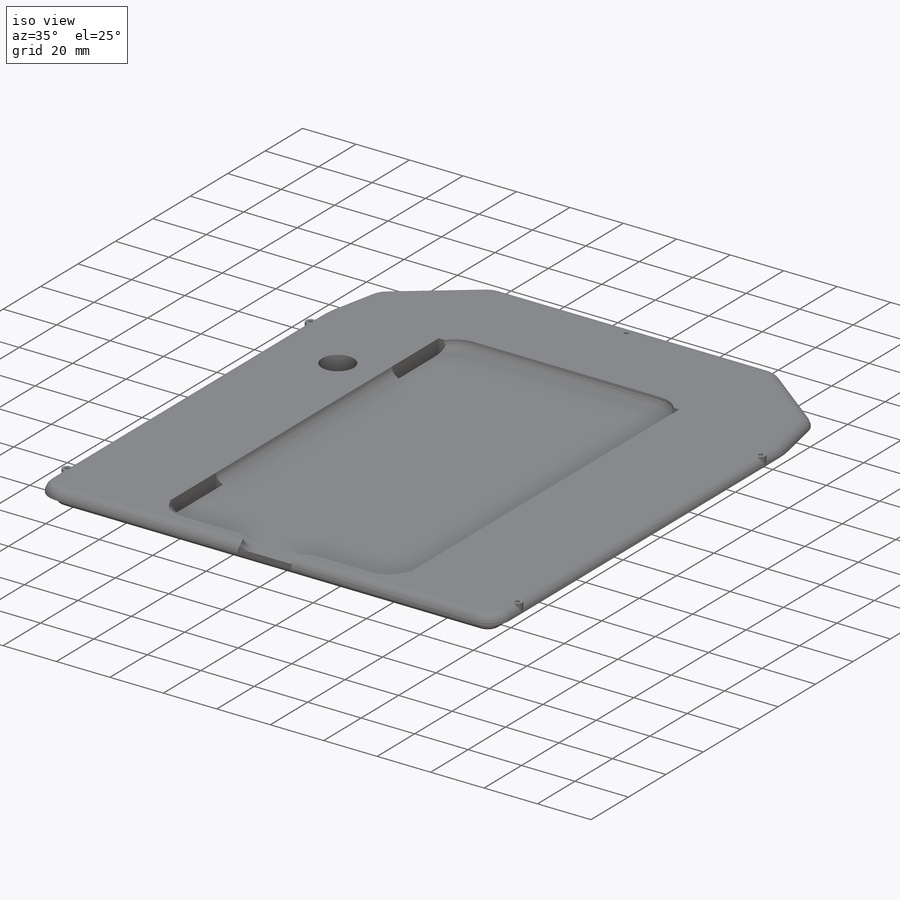
[diagram: iso view]
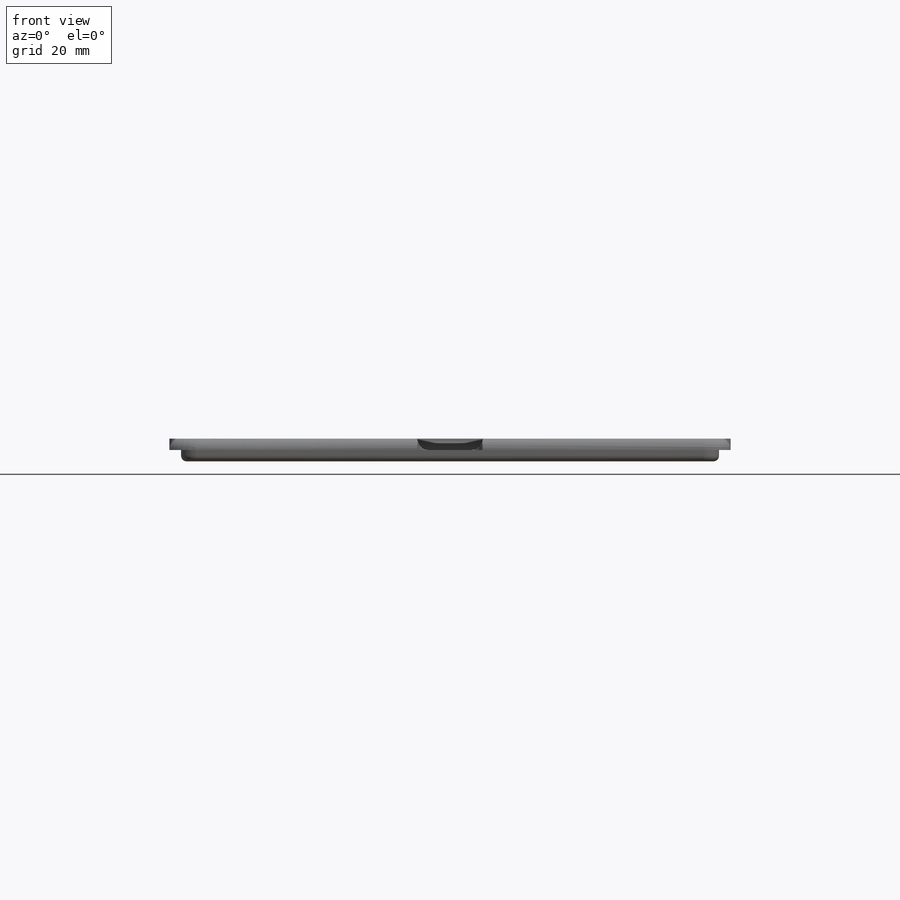
[diagram: front view]
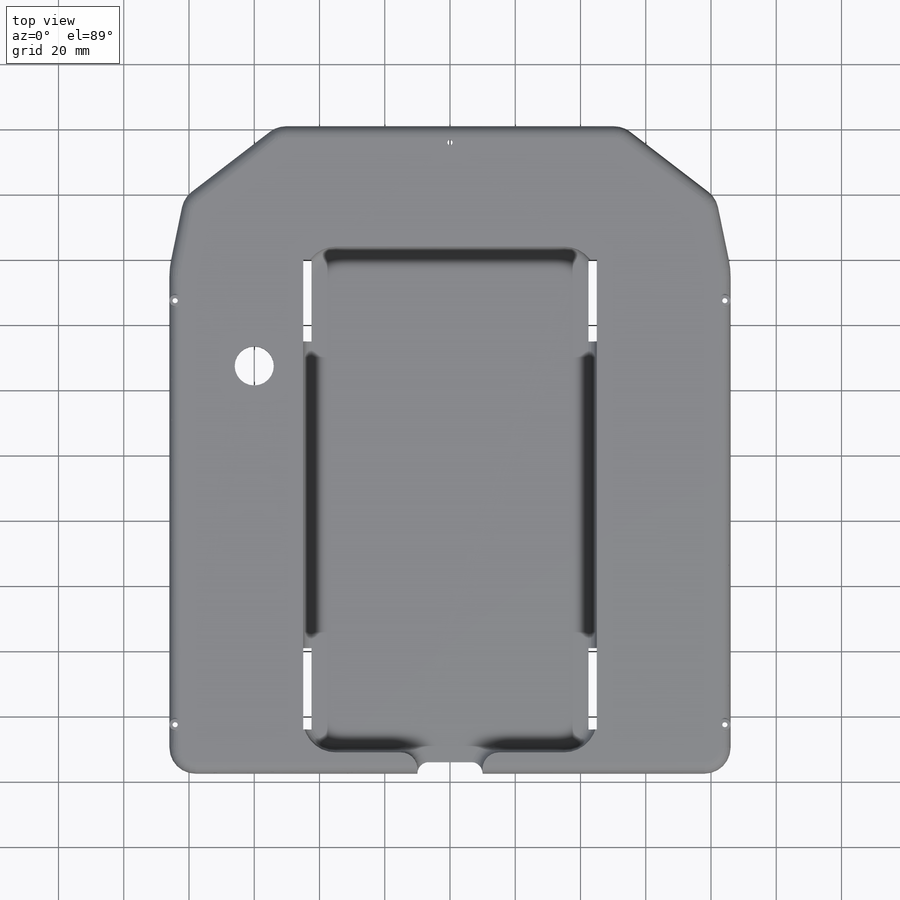
[diagram: top view]
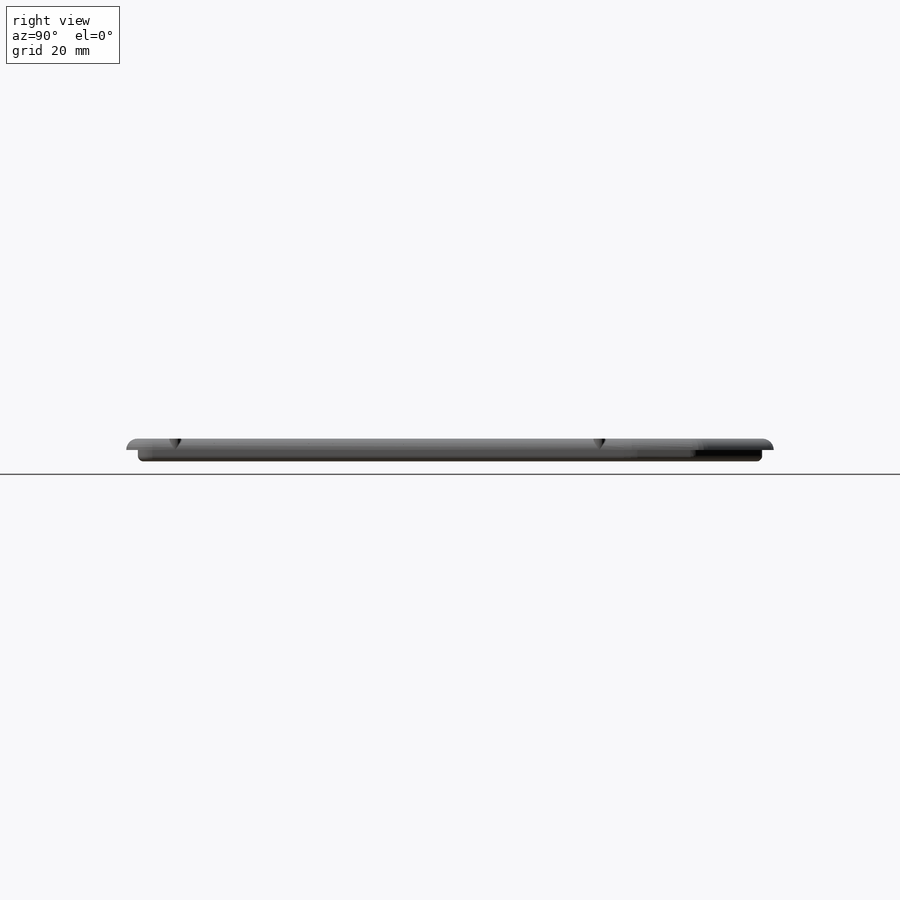
[diagram: right view]
SOLIDWORKS PART (.sldprt)
format: sldprt  version: not decoded by parser v0  size: 825,856 bytes
history: native  units: mm
features: fillet x12, sketch x8, cut_extrude x6, extrude x2, material x1, mirror x1 (+11 scaffold rows collapsed)
feature tree (41):
  scaffold x11  (default folders/planes/origin — collapsed)
  material  "ABS"
  sketch  "Sketch1"  dims[c1.D3=~35.823071mm c1.D6=~115.349557mm c1.D7=~35.823071mm c1.D8=~115.349557mm c2.D7=50.0mm c2.D9=50.0mm c2.D10=50.0mm c2.D1=160.0mm c2.D2=155.0mm c2.D3=25.0mm c2.D4=25.0mm c2.D5=~188.298771mm c3.D1=190.0mm c3.D4=190.0mm c3.D5=86.0mm c3.D6=~113.137085mm c3.D7=90.0deg c3.D8=30.0deg c3.D10=270.0deg c3.D3=~5.729498mm c4.D3=~191.676257deg c4.D4=~33.022701mm c5.D4=200.0deg c5.D6=36.0mm c5.D1=22.0mm c6.D6=36.0mm c6.D4=53.0mm]
  extrude  "Boss-Extrude1"  Depth=7mm
  fillet  "Fillet4"  Radius=8mm
  fillet  "Fillet5"  Radius=24mm
  fillet  "Fillet6"  Radius=8mm
  fillet  "Fillet7"  Radius=8mm
  mirror  "Mirror2"
  fillet  "Fillet3"  Radius=3.5mm
  sketch  "Sketch2"  dims[c1.D3=60.0mm c1.D4=20.0mm c2.D3=10.0mm c2.D5=23.55mm c2.D1=3.55mm c2.D2=0.0mm]
  cut_extrude  "Cut-Extrude1"  Depth=3.5mm
  fillet  "Fillet18"  Radius=1.75mm
  sketch  "Sketch3"  dims[D1=90.0mm D2=155.0mm D3=6.5mm]
  cut_extrude  "Cut-Extrude2"  Depth=3.5mm
  fillet  "Fillet26"  Radius=10mm
  fillet  "Fillet27"  Radius=3.5mm
  sketch  "Sketch4"  dims[c1.D1=10.0mm c1.D2=25.0mm c1.D3=10.0mm c1.D4=2.54mm c2.D3=3.55mm]
  cut_extrude  "Cut-Extrude3"  [1 undecoded]
  sketch  "Sketch5"  dims[D1=1.6mm D2=5.0mm D3=1.75mm D4=15.0mm D5=130.0mm D6=1.75mm]
  cut_extrude  "Cut-Extrude4"  [1 undecoded]
  sketch  "Sketch6"  dims[D1=10.0mm]
  extrude  "Boss-Extrude2"  [1 undecoded]
  fillet  "Fillet30"  Radius=0.5mm
  sketch  "Sketch7"  dims[D1=12.0mm D2=15.0mm D3=70.0mm]
  cut_extrude  "Cut-Extrude5"  [1 undecoded]
  sketch  "Sketch8"  dims[D1=20.0mm]
  cut_extrude  "Cut-Extrude6"  [1 undecoded]
  fillet  "Fillet37"  Radius=5mm
  fillet  "Fillet38"  Radius=3.5mm
  fillet  "Fillet39"  Radius=3.5mm
decode coverage: 23 of 29 modeling features carry decoded parameters
note: ~ marks probable driven/reference dimensions
note: 5 parameter values undecoded
summary: no parameter record found for 5 features
note: suppression state not decoded; provenance and decode notes live in map.json
